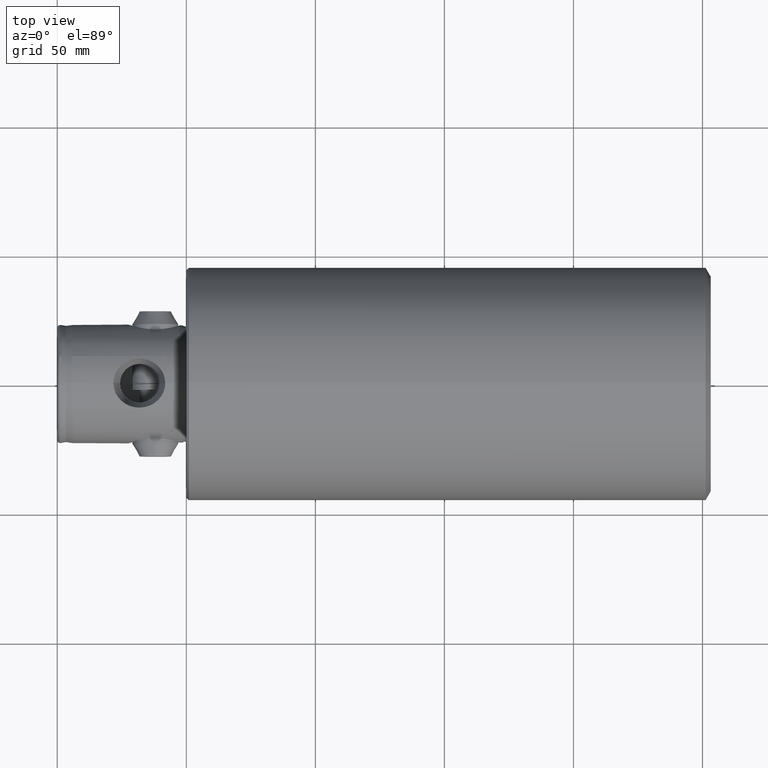
[diagram: clean part render]
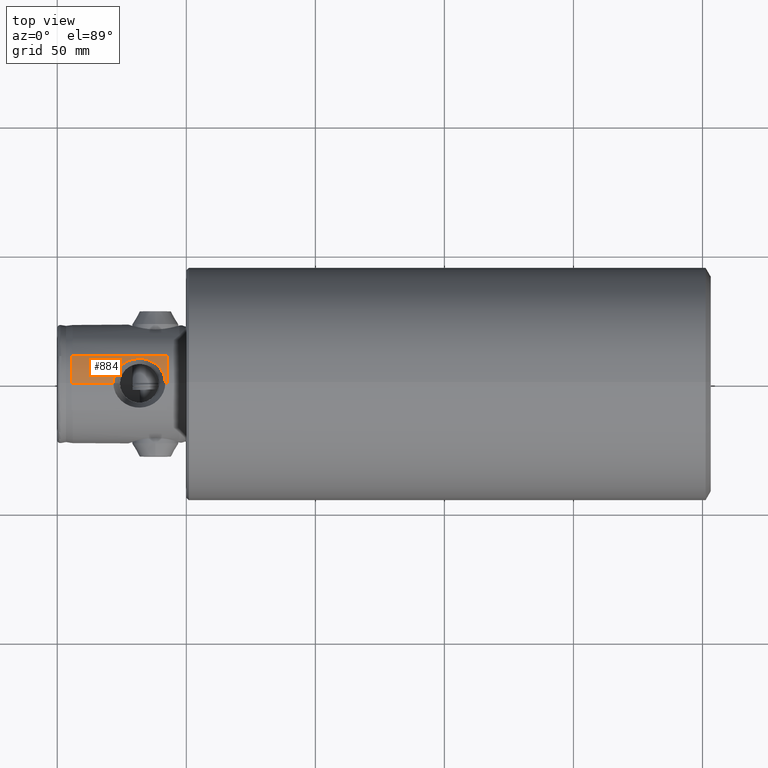
[diagram: same view with one face highlighted and labeled with its STEP entity id]
A machine part, top view. The second image highlights one B-rep face of the part: STEP entity #884.
In plain terms, the highlighted cylindrical surface (partial cylindrical patch) has radius 23 mm, axis along (-1, 0, 0).
Its self-contained STEP definition (entity closure, byte-faithful):
#277 = EDGE_CURVE ( 'NONE', #323, #398, #1315, .T. ) ;
#280 = VERTEX_POINT ( 'NONE', #1469 ) ;
#323 = VERTEX_POINT ( 'NONE', #1635 ) ;
#390 = EDGE_CURVE ( 'NONE', #280, #391, #1776, .T. ) ;
#391 = VERTEX_POINT ( 'NONE', #1799 ) ;
#398 = VERTEX_POINT ( 'NONE', #1859 ) ;
#548 = EDGE_CURVE ( 'NONE', #550, #391, #2037, .T. ) ;
#550 = VERTEX_POINT ( 'NONE', #2036 ) ;
#739 = EDGE_CURVE ( 'NONE', #398, #280, #2622, .T. ) ;
#785 = ORIENTED_EDGE ( 'NONE', *, *, #390, .F. ) ;
#786 = ORIENTED_EDGE ( 'NONE', *, *, #739, .F. ) ;
#819 = EDGE_CURVE ( 'NONE', #323, #840, #2554, .T. ) ;
#840 = VERTEX_POINT ( 'NONE', #2627 ) ;
#841 = EDGE_LOOP ( 'NONE', ( #885, #914, #915, #845, #785, #786 ) ) ;
#844 = EDGE_CURVE ( 'NONE', #840, #550, #2152, .T. ) ;
#845 = ORIENTED_EDGE ( 'NONE', *, *, #548, .T. ) ;
#884 = ADVANCED_FACE ( 'NONE', ( #2689 ), #2688, .T. ) ;
#885 = ORIENTED_EDGE ( 'NONE', *, *, #277, .F. ) ;
#914 = ORIENTED_EDGE ( 'NONE', *, *, #819, .T. ) ;
#915 = ORIENTED_EDGE ( 'NONE', *, *, #844, .T. ) ;
#1309 = CARTESIAN_POINT ( 'NONE',  ( 42.50000000000000000, 0.0000000000000000000, 22.93000000000000000 ) ) ;
#1313 = DIRECTION ( 'NONE',  ( -1.000000000000000000, 0.0000000000000000000, 0.0000000000000000000 ) ) ;
#1314 = VECTOR ( 'NONE', #1313, 1000.000000000000000 ) ;
#1315 = LINE ( 'NONE', #1309, #1314 ) ;
#1469 = CARTESIAN_POINT ( 'NONE',  ( 21.73394383180047000, 1.232694216850181700E-015, 22.93000000000000000 ) ) ;
#1635 = CARTESIAN_POINT ( 'NONE',  ( 42.50000000000000000, 0.0000000000000000000, 22.93000000000000000 ) ) ;
#1775 = CARTESIAN_POINT ( 'NONE',  ( 42.50000000000000000, 0.0000000000000000000, 22.93000000000000000 ) ) ;
#1776 = LINE ( 'NONE', #1775, #1801 ) ;
#1799 = CARTESIAN_POINT ( 'NONE',  ( 5.501924119433200900, -1.616015774491660200E-013, 22.93000000000000000 ) ) ;
#1800 = DIRECTION ( 'NONE',  ( -1.000000000000000000, 0.0000000000000000000, 0.0000000000000000000 ) ) ;
#1801 = VECTOR ( 'NONE', #1800, 1000.000000000000000 ) ;
#1859 = CARTESIAN_POINT ( 'NONE',  ( 41.86605616819951300, -1.071864754969049800E-025, 22.93000000000000000 ) ) ;
#2028 = CARTESIAN_POINT ( 'NONE',  ( 5.501924119433200900, -1.616015774491660200E-013, 22.93000000000000000 ) ) ;
#2029 = CARTESIAN_POINT ( 'NONE',  ( 5.501924119433200900, 0.9045487471797238900, 22.93000000000001000 ) ) ;
#2030 = CARTESIAN_POINT ( 'NONE',  ( 5.503078992303897200, 1.810792848092487300, 22.87683352010285300 ) ) ;
#2031 = CARTESIAN_POINT ( 'NONE',  ( 5.506600756575598300, 3.172786088147332400, 22.71469800706965000 ) ) ;
#2032 = CARTESIAN_POINT ( 'NONE',  ( 5.508075605094466800, 3.626950907461457900, 22.64679815342216800 ) ) ;
#2033 = CARTESIAN_POINT ( 'NONE',  ( 5.511583603975426900, 4.523990862671595000, 22.48529201546555400 ) ) ;
#2034 = CARTESIAN_POINT ( 'NONE',  ( 5.513620186471239700, 4.968406350606788800, 22.39152772268571600 ) ) ;
#2035 = CARTESIAN_POINT ( 'NONE',  ( 5.525191415224732300, 7.170316329458302100, 21.85877544604736800 ) ) ;
#2036 = CARTESIAN_POINT ( 'NONE',  ( 5.557014176752610400, 10.50000000000000200, 20.39338192968112700 ) ) ;
#2037 = B_SPLINE_CURVE_WITH_KNOTS ( 'NONE', 3,
 ( #2084, #2083, #2035, #2034, #2033, #2032, #2031, #2030, #2029, #2028 ),
 .UNSPECIFIED., .F., .F.,
 ( 4, 2, 2, 2, 4 ),
 ( 2.216130662620966800E-007, 0.005424765268401428500, 0.006780901182235219700, 0.008137037096069010100, 0.01084930892373658900 ),
 .UNSPECIFIED. ) ;
#2083 = CARTESIAN_POINT ( 'NONE',  ( 5.538832495318883000, 8.868160975597311000, 21.23069757062000900 ) ) ;
#2084 = CARTESIAN_POINT ( 'NONE',  ( 5.557014176752610400, 10.50000000000000200, 20.39338192968112700 ) ) ;
#2152 = LINE ( 'NONE', #2212, #2211 ) ;
#2153 = DIRECTION ( 'NONE',  ( 0.0000000000000000000, 0.0000000000000000000, 1.000000000000000000 ) ) ;
#2211 = VECTOR ( 'NONE', #2276, 1000.000000000000000 ) ;
#2212 = CARTESIAN_POINT ( 'NONE',  ( 42.50000000000000000, 10.50000000000000200, 20.39338192968112700 ) ) ;
#2276 = DIRECTION ( 'NONE',  ( -1.000000000000000000, 0.0000000000000000000, 0.0000000000000000000 ) ) ;
#2478 = CARTESIAN_POINT ( 'NONE',  ( 21.73394383180047000, 1.232694216850181700E-015, 22.93000000000000000 ) ) ;
#2479 = CARTESIAN_POINT ( 'NONE',  ( 21.73394383180046700, 0.3229024251101534300, 22.93000000000000000 ) ) ;
#2480 = CARTESIAN_POINT ( 'NONE',  ( 21.75125497775149000, 0.6467131766079802200, 22.92320359817933500 ) ) ;
#2481 = CARTESIAN_POINT ( 'NONE',  ( 21.82165737707815700, 1.296208861167275500, 22.89574606295986900 ) ) ;
#2482 = CARTESIAN_POINT ( 'NONE',  ( 21.87441602487812600, 1.617551933659408200, 22.87521826830016300 ) ) ;
#2483 = CARTESIAN_POINT ( 'NONE',  ( 22.08095450919080700, 2.560590515877528600, 22.79572628984443500 ) ) ;
#2550 = DIRECTION ( 'NONE',  ( 0.0000000000000000000, 0.0000000000000000000, -1.000000000000000000 ) ) ;
#2551 = DIRECTION ( 'NONE',  ( -1.000000000000000000, -0.0000000000000000000, -0.0000000000000000000 ) ) ;
#2552 = CARTESIAN_POINT ( 'NONE',  ( 42.50000000000000000, 0.0000000000000000000, -0.06999999999999996500 ) ) ;
#2553 = AXIS2_PLACEMENT_3D ( 'NONE', #2552, #2551, #2550 ) ;
#2554 = CIRCLE ( 'NONE', #2553, 23.00000000000000000 ) ;
#2556 = CARTESIAN_POINT ( 'NONE',  ( 41.18010433622709600, 3.469591292252285800, 22.66873576190408500 ) ) ;
#2557 = CARTESIAN_POINT ( 'NONE',  ( 41.29911596388620900, 3.166824114369276800, 22.71302054686912800 ) ) ;
#2558 = CARTESIAN_POINT ( 'NONE',  ( 41.50263237614431900, 2.555815046036197900, 22.78962837976301600 ) ) ;
#2559 = CARTESIAN_POINT ( 'NONE',  ( 34.97611646560521600, 9.034176933188225800, 21.08165795640130500 ) ) ;
#2560 = CARTESIAN_POINT ( 'NONE',  ( 35.28023872284548200, 8.933605984532617200, 21.12447741224240300 ) ) ;
#2561 = CARTESIAN_POINT ( 'NONE',  ( 36.17384343524549500, 8.592143302704760900, 21.26625618812980500 ) ) ;
#2562 = CARTESIAN_POINT ( 'NONE',  ( 22.28302335959480400, 3.166469470875461500, 22.71868152655332900 ) ) ;
#2563 = CARTESIAN_POINT ( 'NONE',  ( 22.68008203804830100, 4.042671462604395100, 22.57386100254568700 ) ) ;
#2564 = CARTESIAN_POINT ( 'NONE',  ( 22.82924126230489700, 4.330739165335428400, 22.52035438733805600 ) ) ;
#2565 = CARTESIAN_POINT ( 'NONE',  ( 23.15214159443534900, 4.882924275142853400, 22.40746568425619100 ) ) ;
#2566 = CARTESIAN_POINT ( 'NONE',  ( 23.32627086466916900, 5.148345898816073100, 22.34792967360677500 ) ) ;
#2567 = CARTESIAN_POINT ( 'NONE',  ( 23.88508823252613700, 5.914524939439116800, 22.16273577676158300 ) ) ;
#2569 = CARTESIAN_POINT ( 'NONE',  ( 29.22636300228770900, 9.218672598512819500, 21.00208052272439800 ) ) ;
#2570 = CARTESIAN_POINT ( 'NONE',  ( 30.49369767187937400, 9.453474876729144300, 20.89779232036130800 ) ) ;
#2571 = CARTESIAN_POINT ( 'NONE',  ( 31.14991280806219700, 9.513808705481114500, 20.87009178583892000 ) ) ;
#2572 = CARTESIAN_POINT ( 'NONE',  ( 32.44137294477748400, 9.514335961068900000, 20.86985222736200300 ) ) ;
#2583 = CARTESIAN_POINT ( 'NONE',  ( 39.04315786900314600, 6.617369128576206600, 21.95862865873134200 ) ) ;
#2584 = CARTESIAN_POINT ( 'NONE',  ( 39.26615852109709700, 6.392279725840295700, 22.02523321648297400 ) ) ;
#2585 = CARTESIAN_POINT ( 'NONE',  ( 39.69155494841405100, 5.918009656447173600, 22.15695959168412800 ) ) ;
#2588 = CARTESIAN_POINT ( 'NONE',  ( 39.89405315180219000, 5.668373805241256700, 22.22214062967408700 ) ) ;
#2589 = CARTESIAN_POINT ( 'NONE',  ( 40.45784778683778900, 4.896953517319439600, 22.40887515080898500 ) ) ;
#2590 = CARTESIAN_POINT ( 'NONE',  ( 40.78037148281282500, 4.348383041805032400, 22.52301299210925100 ) ) ;
#2622 = B_SPLINE_CURVE_WITH_KNOTS ( 'NONE', 3,
 ( #2642, #2641, #2640, #2666, #2665, #2664, #2558, #2557, #2556, #2590, #2589, #2588, #2585, #2584, #2583, #2625, #2624, #2623, #2561, #2560, #2559, #2663, #2662, #2661, #2572, #2571, #2570, #2569, #2672, #2671, #2670, #2669, #2648, #2647, #2646, #2645, #2644, #2643, #2567, #2566, #2565, #2564, #2563, #2562, #2483, #2482, #2481, #2480, #2479, #2478 ),
 .UNSPECIFIED., .F., .F.,
 ( 4, 2, 2, 2, 2, 2, 2, 2, 2, 2, 2, 2, 2, 2, 2, 2, 2, 2, 2, 2, 2, 2, 2, 2, 4 ),
 ( 0.02327018176589891500, 0.02423196276558969200, 0.02519374376528046900, 0.02615552476497124600, 0.02711730576466202600, 0.02904086776404358000, 0.03000264876373436000, 0.03096442976342513700, 0.03288799176280670500, 0.03481155376218827300, 0.03577333476187906400, 0.03673511576156986100, 0.03865867776095145000, 0.04058223976033303900, 0.04250580175971463400, 0.04346758275940541800, 0.04442936375909620200, 0.04539114475878699300, 0.04635292575847778400, 0.04827648775785935200, 0.04923826875755014200, 0.05020004975724092600, 0.05212361175662250100, 0.05308539275631329200, 0.05404717375600407600 ),
 .UNSPECIFIED. ) ;
#2623 = CARTESIAN_POINT ( 'NONE',  ( 36.74474095709796000, 8.311928297214215900, 21.37853768092387300 ) ) ;
#2624 = CARTESIAN_POINT ( 'NONE',  ( 37.83664313641456500, 7.641002470115156000, 21.62661268308339800 ) ) ;
#2625 = CARTESIAN_POINT ( 'NONE',  ( 38.34405230024276500, 7.258271108079355800, 21.75928582418745800 ) ) ;
#2627 = CARTESIAN_POINT ( 'NONE',  ( 42.50000000000000000, 10.50000000000000200, 20.39338192968112700 ) ) ;
#2640 = CARTESIAN_POINT ( 'NONE',  ( 41.84836960021109300, 0.6512958047953149000, 22.92305676618122900 ) ) ;
#2641 = CARTESIAN_POINT ( 'NONE',  ( 41.86605616819952000, 0.3235630246090408500, 22.93000000000000300 ) ) ;
#2642 = CARTESIAN_POINT ( 'NONE',  ( 41.86605616819951300, -1.071864754969049800E-025, 22.93000000000000000 ) ) ;
#2643 = CARTESIAN_POINT ( 'NONE',  ( 24.30581704189386000, 6.385492274843327800, 22.03046071144995500 ) ) ;
#2644 = CARTESIAN_POINT ( 'NONE',  ( 25.01031583414154000, 7.033924919891826600, 21.82920361643161700 ) ) ;
#2645 = CARTESIAN_POINT ( 'NONE',  ( 25.25568728760308800, 7.238507270020098100, 21.76219713136827100 ) ) ;
#2646 = CARTESIAN_POINT ( 'NONE',  ( 25.76140723559046800, 7.620918826402252900, 21.63166849167239600 ) ) ;
#2647 = CARTESIAN_POINT ( 'NONE',  ( 26.02260227501651400, 7.799533402871585300, 21.56790013544360100 ) ) ;
#2648 = CARTESIAN_POINT ( 'NONE',  ( 26.56164203063690000, 8.132230350661615100, 21.44507083645595100 ) ) ;
#2661 = CARTESIAN_POINT ( 'NONE',  ( 33.08230413338735300, 9.456539978284300900, 20.89640417361890100 ) ) ;
#2662 = CARTESIAN_POINT ( 'NONE',  ( 34.03650287372239800, 9.281790350390801700, 20.97405927986567100 ) ) ;
#2663 = CARTESIAN_POINT ( 'NONE',  ( 34.35485724703913500, 9.208231456142542000, 21.00646698606889700 ) ) ;
#2664 = CARTESIAN_POINT ( 'NONE',  ( 41.58797922142247900, 2.245906826999368300, 22.82225713754357700 ) ) ;
#2665 = CARTESIAN_POINT ( 'NONE',  ( 41.72565733675740800, 1.617154558050726300, 22.87524668558507900 ) ) ;
#2666 = CARTESIAN_POINT ( 'NONE',  ( 41.77799212669682300, 1.298311551067349100, 22.89560978494892400 ) ) ;
#2669 = CARTESIAN_POINT ( 'NONE',  ( 26.83948663185298100, 8.286311904941982200, 21.38600712282445200 ) ) ;
#2670 = CARTESIAN_POINT ( 'NONE',  ( 27.41232602191927000, 8.569794127050926100, 21.27436307929193000 ) ) ;
#2671 = CARTESIAN_POINT ( 'NONE',  ( 27.70887748567903900, 8.699712747313441200, 21.22156041000527100 ) ) ;
#2672 = CARTESIAN_POINT ( 'NONE',  ( 28.60947427828865100, 9.045208332624383700, 21.07820069259107500 ) ) ;
#2683 = DIRECTION ( 'NONE',  ( -1.000000000000000000, 0.0000000000000000000, 0.0000000000000000000 ) ) ;
#2684 = AXIS2_PLACEMENT_3D ( 'NONE', #2687, #2683, #2153 ) ;
#2687 = CARTESIAN_POINT ( 'NONE',  ( 42.50000000000000000, 0.0000000000000000000, -0.06999999999999996500 ) ) ;
#2688 = CYLINDRICAL_SURFACE ( 'NONE', #2684, 23.00000000000000000 ) ;
#2689 = FACE_OUTER_BOUND ( 'NONE', #841, .T. ) ;